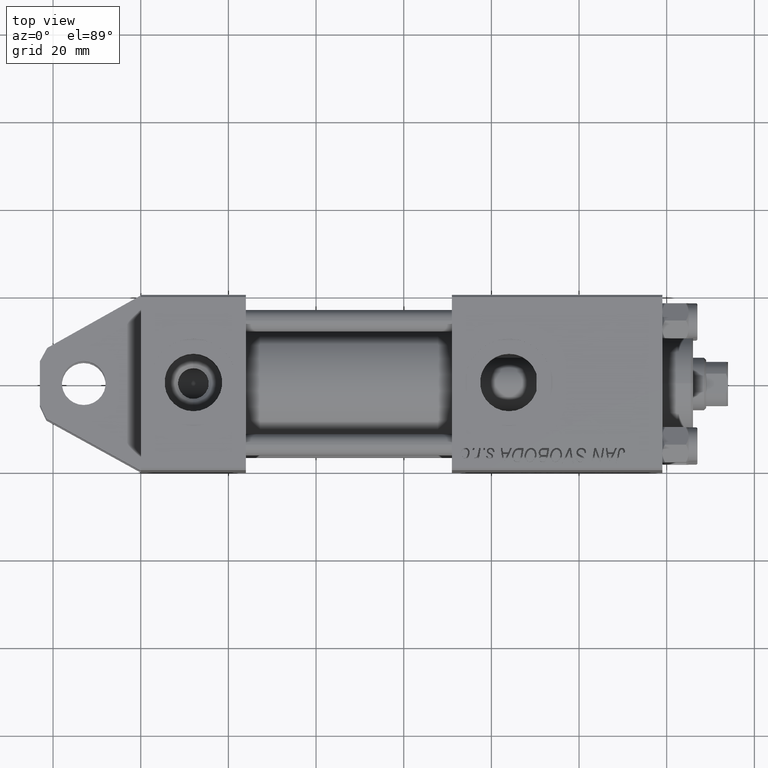
[diagram: clean part render]
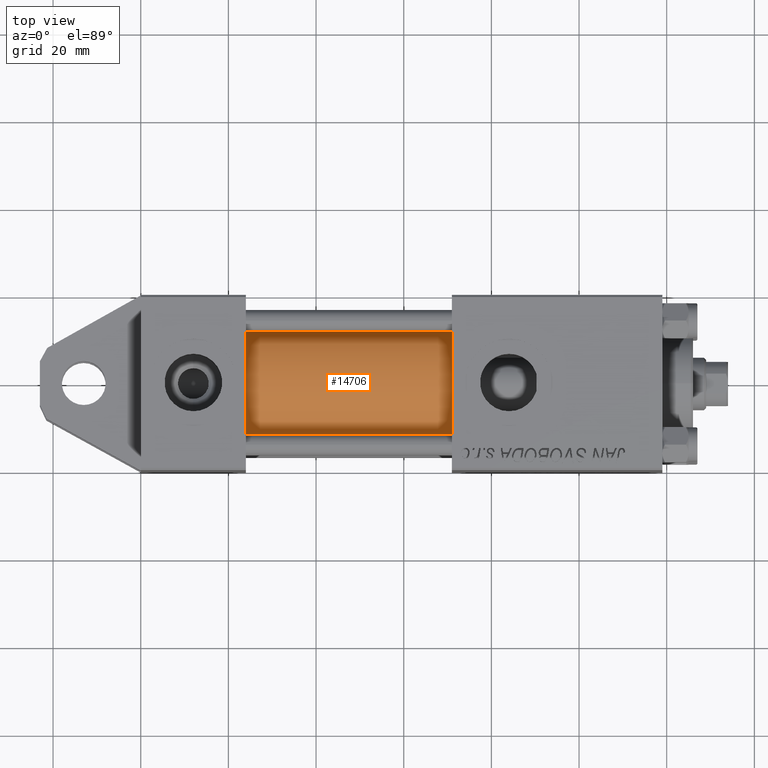
[diagram: same view with one face highlighted and labeled with its STEP entity id]
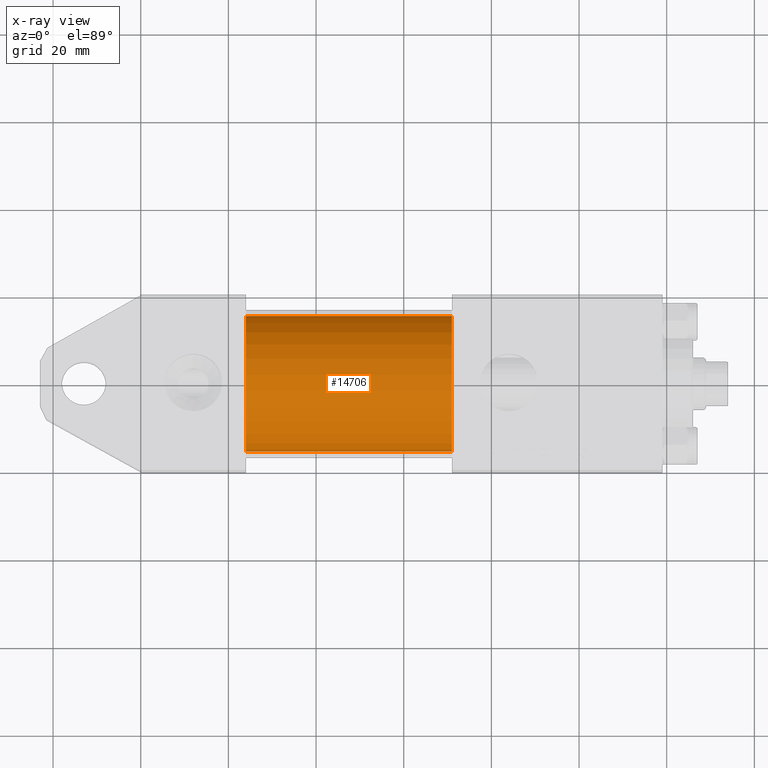
[diagram: x-ray of the same camera — body ghosted, the highlighted face saturated]
A machine part, top view. The second image highlights one B-rep face of the part: STEP entity #14706.
The next image is the same camera in x-ray: the body ghosted, the highlighted face saturated — about 0% of this face is hidden behind the body in this view.
In plain terms, the highlighted cylindrical surface (partial cylindrical patch) has radius 15.5 mm, axis along (-1, -0, 0).
Its self-contained STEP definition (entity closure, byte-faithful):
#2039 = CARTESIAN_POINT ( 'NONE',  ( 24.00000000000000000, -3.469446951953614189E-15, 0.000000000000000000 ) ) ;
#2973 = EDGE_CURVE ( 'NONE', #9373, #36715, #16806, .T. ) ;
#4700 = CIRCLE ( 'NONE', #7899, 15.50000000000000000 ) ;
#4737 = DIRECTION ( 'NONE',  ( 0.000000000000000000, 0.000000000000000000, 1.000000000000000000 ) ) ;
#5467 = DIRECTION ( 'NONE',  ( -1.000000000000000000, -0.000000000000000000, -0.000000000000000000 ) ) ;
#5549 = VECTOR ( 'NONE', #5467, 1000.000000000000000 ) ;
#6575 = DIRECTION ( 'NONE',  ( 1.000000000000000000, 0.000000000000000000, 0.000000000000000000 ) ) ;
#7899 = AXIS2_PLACEMENT_3D ( 'NONE', #2039, #6575, #48244 ) ;
#8239 = AXIS2_PLACEMENT_3D ( 'NONE', #46188, #8508, #4737 ) ;
#8508 = DIRECTION ( 'NONE',  ( -1.000000000000000000, -0.000000000000000000, -0.000000000000000000 ) ) ;
#9373 = VERTEX_POINT ( 'NONE', #35404 ) ;
#9391 = ORIENTED_EDGE ( 'NONE', *, *, #47496, .T. ) ;
#12280 = EDGE_CURVE ( 'NONE', #36796, #9373, #20203, .T. ) ;
#14706 = ADVANCED_FACE ( 'NONE', ( #42896 ), #15800, .T. ) ;
#15800 = CYLINDRICAL_SURFACE ( 'NONE', #8239, 15.50000000000000000 ) ;
#16806 = LINE ( 'NONE', #28344, #24933 ) ;
#16974 = CARTESIAN_POINT ( 'NONE',  ( 71.00000000000001421, -3.469446951953614189E-15, 15.50000000000000000 ) ) ;
#17996 = LINE ( 'NONE', #37069, #5549 ) ;
#20203 = CIRCLE ( 'NONE', #45051, 15.50000000000000000 ) ;
#20614 = EDGE_LOOP ( 'NONE', ( #22284, #27250, #9391, #40136 ) ) ;
#22284 = ORIENTED_EDGE ( 'NONE', *, *, #2973, .F. ) ;
#22997 = CARTESIAN_POINT ( 'NONE',  ( 24.00000000000000000, -1.571244413275216631E-15, -15.50000000000000000 ) ) ;
#24933 = VECTOR ( 'NONE', #43649, 1000.000000000000000 ) ;
#25012 = DIRECTION ( 'NONE',  ( 1.000000000000000000, 0.000000000000000000, 0.000000000000000000 ) ) ;
#27250 = ORIENTED_EDGE ( 'NONE', *, *, #12280, .F. ) ;
#28344 = CARTESIAN_POINT ( 'NONE',  ( 71.00000000000001421, -1.571244413275216631E-15, -15.50000000000000000 ) ) ;
#32070 = CARTESIAN_POINT ( 'NONE',  ( 24.00000000000000000, -3.469446951953614189E-15, 15.50000000000000000 ) ) ;
#32310 = DIRECTION ( 'NONE',  ( 0.000000000000000000, 0.000000000000000000, -1.000000000000000000 ) ) ;
#35404 = CARTESIAN_POINT ( 'NONE',  ( 71.00000000000001421, -1.571244413275216631E-15, -15.50000000000000000 ) ) ;
#36715 = VERTEX_POINT ( 'NONE', #22997 ) ;
#36796 = VERTEX_POINT ( 'NONE', #16974 ) ;
#37069 = CARTESIAN_POINT ( 'NONE',  ( 71.00000000000001421, -3.469446951953614189E-15, 15.50000000000000000 ) ) ;
#40136 = ORIENTED_EDGE ( 'NONE', *, *, #45926, .T. ) ;
#40842 = VERTEX_POINT ( 'NONE', #32070 ) ;
#42896 = FACE_OUTER_BOUND ( 'NONE', #20614, .T. ) ;
#43649 = DIRECTION ( 'NONE',  ( -1.000000000000000000, -0.000000000000000000, -0.000000000000000000 ) ) ;
#44344 = CARTESIAN_POINT ( 'NONE',  ( 71.00000000000001421, -3.469446951953614189E-15, 0.000000000000000000 ) ) ;
#45051 = AXIS2_PLACEMENT_3D ( 'NONE', #44344, #25012, #32310 ) ;
#45926 = EDGE_CURVE ( 'NONE', #40842, #36715, #4700, .T. ) ;
#46188 = CARTESIAN_POINT ( 'NONE',  ( 71.00000000000001421, -3.469446951953614189E-15, 0.000000000000000000 ) ) ;
#47496 = EDGE_CURVE ( 'NONE', #36796, #40842, #17996, .T. ) ;
#48244 = DIRECTION ( 'NONE',  ( 0.000000000000000000, 0.000000000000000000, 1.000000000000000000 ) ) ;